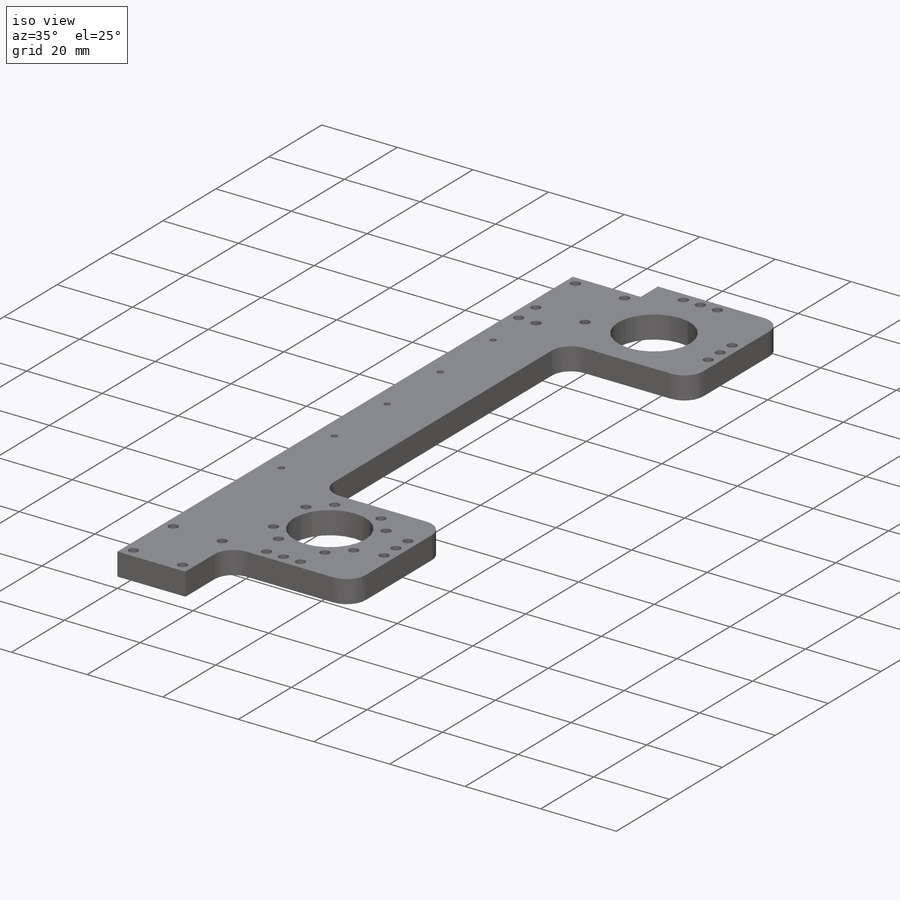
[diagram: iso view]
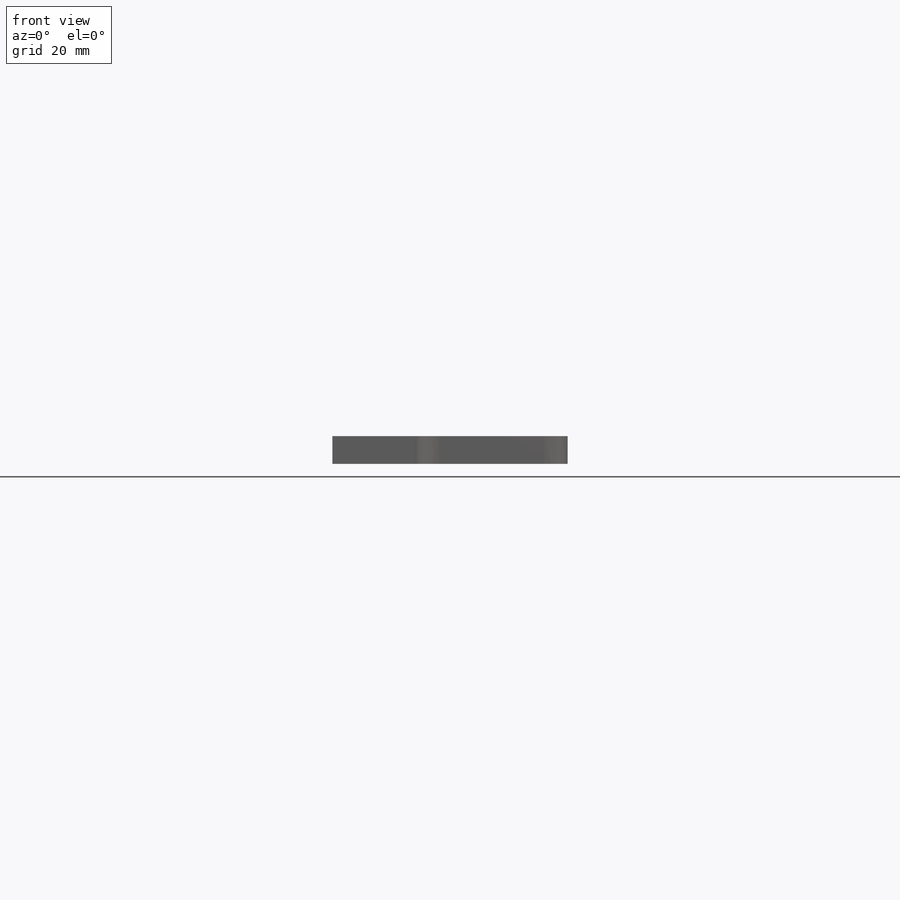
[diagram: front view]
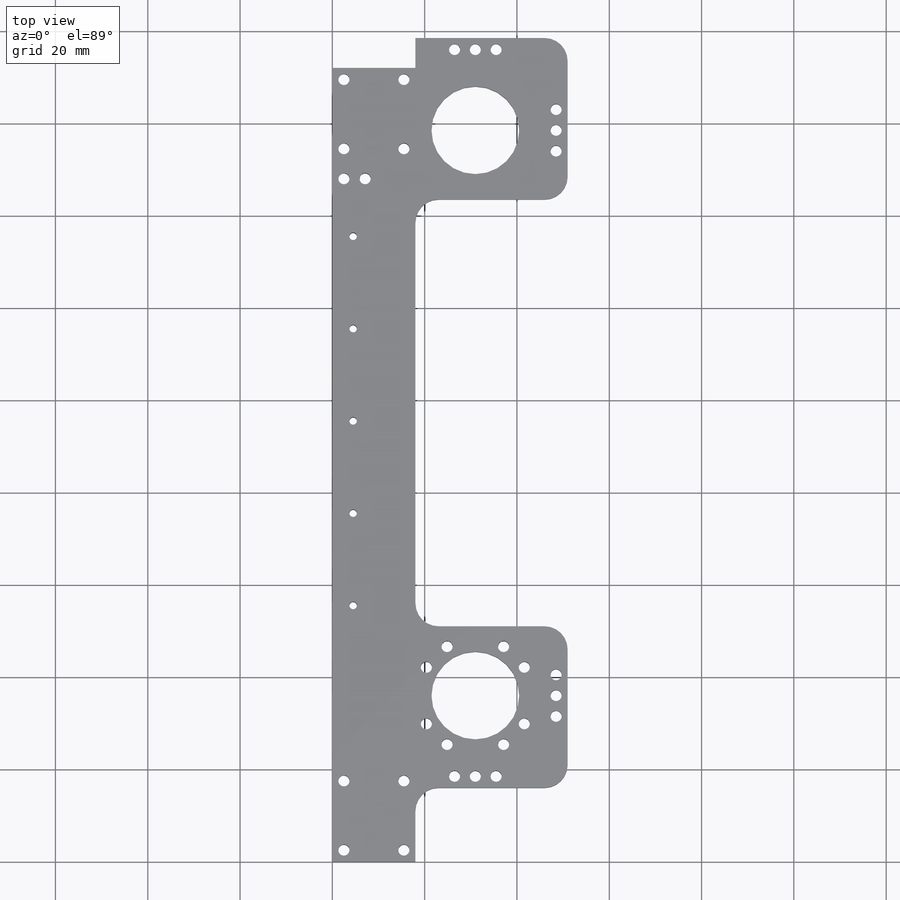
[diagram: top view]
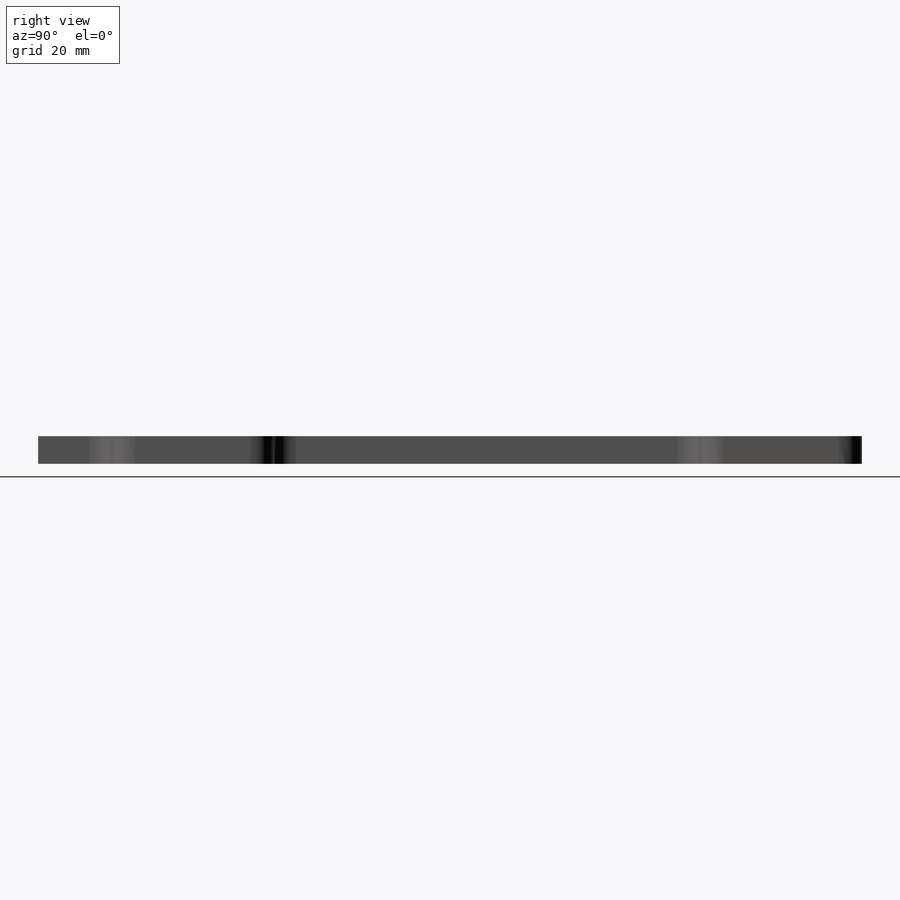
[diagram: right view]
SOLIDWORKS PART (.sldprt)
format: sldprt  version: not decoded by parser v0  size: 525,312 bytes
history: native  units: mm
features: sketch x13, hole x5, thread x5, extrude x2, material x1, cut_extrude x1, fillet x1 (+16 scaffold rows collapsed)
feature tree (44):
  scaffold x16  (default folders/planes/origin — collapsed)
  material  "1060 Alloy"
  sketch  "Sketch1"  dims[D5=2.0mm D1=18.0mm D2=172.0mm D3=2.5mm D4=6.5mm D6=7.5mm]
  extrude  "Boss-Extrude1"  Depth=6mm
  sketch  "Sketch3"  dims[c1.D1=21.0mm c1.D2=30.0mm c1.D3=30.0mm c1.D4=5.0mm c2.D1=36.0mm c2.D4=13.5mm c2.D2=15.0mm c2.D5=20.0mm c2.D3=15.0mm c2.D6=20.0mm]
  extrude  "Boss-Extrude2"  Depth=32.98mm
  sketch  "Sketch2"  dims[c1.D2=19.0mm c1.D1=27.0mm c1.D3=30.98mm c2.D1=36.0mm c2.D4=13.5mm]
  cut_extrude  "Cut-Extrude1"  [1 undecoded]
  fillet  "Fillet1"  Radius=5mm
  hole  "M2 Tapped Hole1"  Diameter=1.6mm Depth=6mm
  sketch  "Sketch6"  dims[D1=55.5mm D3=4.5mm D2=5.0]
  sketch  "Sketch5"  dims[hole-wizard template sketch: 60 standard entries collapsed; hole parameters kept: c18.Thru Tap Drill Depth=6.0mm]
  thread  "Hole Thread1"  Diameter=2mm  [1 undecoded]
  thread  "Hole Thread2"  Diameter=2mm  [1 undecoded]
  thread  "Hole Thread3"  Diameter=2mm  [1 undecoded]
  thread  "Hole Thread4"  Diameter=2mm  [1 undecoded]
  thread  "Hole Thread5"  Diameter=2mm  [1 undecoded]
  hole  "M2 Clearance Hole1"  Diameter=2.4mm Depth=6mm
  sketch  "3DSketch1"  dims[c1.D1=~6.572008mm c1.D3=2.5mm c1.D2=~6.360074mm c2.D1=2.5mm c2.D2=2.5mm c2.D3=4.5mm c2.D4=4.5mm c2.D5=15.5mm c2.D6=15.5mm c2.D7=4.5mm c2.D8=4.5mm c2.D9=~3.165359mm c2.D13=2.5mm c2.D10=~5.297864mm c2.D12=4.5mm c2.D11=~14.496228mm c3.D10=~14.496228mm c4.D10=~4.255624mm c4.D11=4.5mm c5.D10=4.5mm c5.D11=4.5mm c5.D12=~15.607339mm c5.D13=15.5mm c5.D9=2.5mm c6.D12=15.5mm]
  sketch  "Sketch7"  dims[hole-wizard template sketch: 60 standard entries collapsed; hole parameters kept: c18.Thru Hole Depth=6.0mm]
  hole  "M2 Clearance Hole2"  Diameter=2.4mm Depth=6mm
  sketch  "Sketch10"  dims[D1=2.5mm D2=7.5mm D3=6.5mm]
  sketch  "Sketch9"  dims[hole-wizard template sketch: 60 standard entries collapsed; hole parameters kept: c18.Thru Hole Depth=6.0mm]
  hole  "M2 Clearance Hole3"  Diameter=2.4mm Depth=6mm
  sketch  "Sketch12"  dims[c1.D1=1.6mm c1.D3=1.6mm c1.D2=1.6mm c2.D1=12.5mm c2.D2=2.0mm c2.D3=2.6mm c3.D1=2.0mm c3.D2=12.5mm c3.D3=4.6mm]
  sketch  "Sketch11"  dims[hole-wizard template sketch: 60 standard entries collapsed; hole parameters kept: c18.Thru Hole Depth=6.0mm]
  hole  "M2 Clearance Hole4"  Diameter=2.4mm Depth=6mm
  sketch  "Sketch14"  dims[c1.D1=24.5mm c1.D2=~23.010059mm c2.D2=30.0deg c2.D3=24.0mm c3.D3=~163.486435deg c3.D4=24.0mm c4.D3=~23.010059mm c5.D3=60.0deg c5.D4=24.0mm c6.D4=30.0deg c6.D5=~20.78461mm c7.D5=30.0deg]
  sketch  "Sketch13"  dims[hole-wizard template sketch: 60 standard entries collapsed; hole parameters kept: c18.Thru Hole Depth=6.0mm]
decode coverage: 26 of 27 modeling features carry decoded parameters
note: ~ marks probable driven/reference dimensions
note: 6 parameter values undecoded
summary: Diameter pulled from absorbed wizard sketch
note: suppression state not decoded; provenance and decode notes live in map.json
